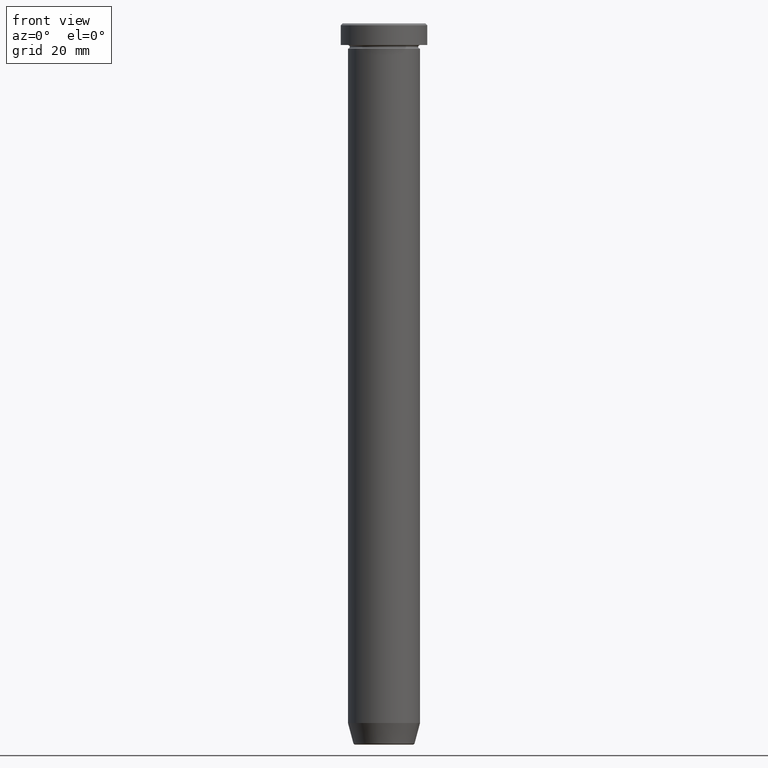
[diagram: clean part render]
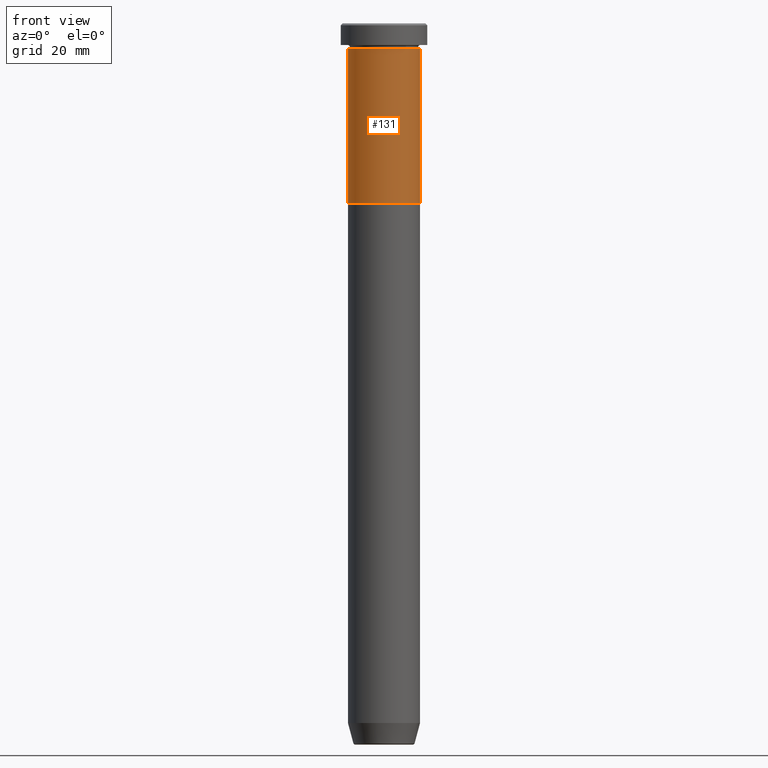
[diagram: same view with one face highlighted and labeled with its STEP entity id]
A machine part, front view. The second image highlights one B-rep face of the part: STEP entity #131.
In plain terms, the highlighted cylindrical surface (edge-blend (fillet) strip) has radius 10 mm, axis along (-0, -0, 1).
Its self-contained STEP definition (entity closure, byte-faithful):
#4 = CIRCLE ( 'NONE', #421, 10.00000000000000000 ) ;
#6 = CARTESIAN_POINT ( 'NONE',  ( -10.00000000000000000, 1.224646799147353256E-15, -50.00000000000000000 ) ) ;
#16 = LINE ( 'NONE', #194, #376 ) ;
#46 = CARTESIAN_POINT ( 'NONE',  ( -10.00000000000000000, 1.224646799147353256E-15, -6.999999999999999112 ) ) ;
#55 = AXIS2_PLACEMENT_3D ( 'NONE', #124, #304, #503 ) ;
#59 = EDGE_CURVE ( 'NONE', #314, #480, #4, .T. ) ;
#67 = CYLINDRICAL_SURFACE ( 'NONE', #55, 10.00000000000000000 ) ;
#69 = EDGE_LOOP ( 'NONE', ( #430, #455, #198, #399 ) ) ;
#84 = CARTESIAN_POINT ( 'NONE',  ( 10.00000000000000000, 0.000000000000000000, -50.00000000000000000 ) ) ;
#124 = CARTESIAN_POINT ( 'NONE',  ( 0.000000000000000000, 0.000000000000000000, 0.000000000000000000 ) ) ;
#131 = ADVANCED_FACE ( 'NONE', ( #591 ), #67, .T. ) ;
#133 = VERTEX_POINT ( 'NONE', #84 ) ;
#136 = EDGE_CURVE ( 'NONE', #361, #314, #256, .T. ) ;
#155 = DIRECTION ( 'NONE',  ( -0.000000000000000000, -0.000000000000000000, 1.000000000000000000 ) ) ;
#183 = CARTESIAN_POINT ( 'NONE',  ( 10.00000000000000000, 0.000000000000000000, -6.999999999999999112 ) ) ;
#189 = AXIS2_PLACEMENT_3D ( 'NONE', #199, #155, #541 ) ;
#194 = CARTESIAN_POINT ( 'NONE',  ( 10.00000000000000000, 0.000000000000000000, 0.000000000000000000 ) ) ;
#195 = DIRECTION ( 'NONE',  ( -0.000000000000000000, -0.000000000000000000, 1.000000000000000000 ) ) ;
#198 = ORIENTED_EDGE ( 'NONE', *, *, #589, .T. ) ;
#199 = CARTESIAN_POINT ( 'NONE',  ( 0.000000000000000000, 0.000000000000000000, -50.00000000000000000 ) ) ;
#219 = DIRECTION ( 'NONE',  ( -0.000000000000000000, -0.000000000000000000, 1.000000000000000000 ) ) ;
#250 = VECTOR ( 'NONE', #195, 1000.000000000000000 ) ;
#256 = LINE ( 'NONE', #457, #250 ) ;
#263 = CIRCLE ( 'NONE', #189, 10.00000000000000000 ) ;
#304 = DIRECTION ( 'NONE',  ( -0.000000000000000000, -0.000000000000000000, 1.000000000000000000 ) ) ;
#314 = VERTEX_POINT ( 'NONE', #46 ) ;
#361 = VERTEX_POINT ( 'NONE', #6 ) ;
#376 = VECTOR ( 'NONE', #564, 1000.000000000000000 ) ;
#399 = ORIENTED_EDGE ( 'NONE', *, *, #59, .F. ) ;
#421 = AXIS2_PLACEMENT_3D ( 'NONE', #539, #219, #544 ) ;
#430 = ORIENTED_EDGE ( 'NONE', *, *, #136, .F. ) ;
#455 = ORIENTED_EDGE ( 'NONE', *, *, #543, .T. ) ;
#457 = CARTESIAN_POINT ( 'NONE',  ( -10.00000000000000000, 1.224646799147353256E-15, 0.000000000000000000 ) ) ;
#480 = VERTEX_POINT ( 'NONE', #183 ) ;
#503 = DIRECTION ( 'NONE',  ( 1.000000000000000000, 0.000000000000000000, 0.000000000000000000 ) ) ;
#539 = CARTESIAN_POINT ( 'NONE',  ( 0.000000000000000000, 0.000000000000000000, -6.999999999999999112 ) ) ;
#541 = DIRECTION ( 'NONE',  ( 1.000000000000000000, 0.000000000000000000, 0.000000000000000000 ) ) ;
#543 = EDGE_CURVE ( 'NONE', #361, #133, #263, .T. ) ;
#544 = DIRECTION ( 'NONE',  ( 1.000000000000000000, 0.000000000000000000, 0.000000000000000000 ) ) ;
#564 = DIRECTION ( 'NONE',  ( -0.000000000000000000, -0.000000000000000000, 1.000000000000000000 ) ) ;
#589 = EDGE_CURVE ( 'NONE', #133, #480, #16, .T. ) ;
#591 = FACE_OUTER_BOUND ( 'NONE', #69, .T. ) ;